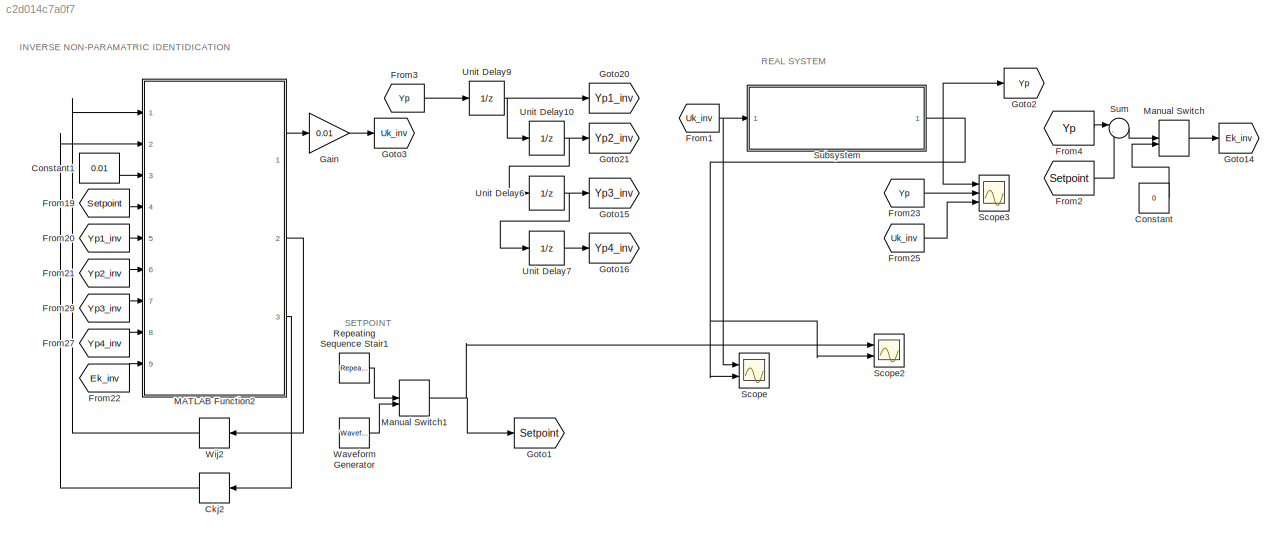
MODEL slx_c2d014c7a0f7
KIND model
CONFIG AbsTol = auto
CONFIG EnableMultiTasking = off
CONFIG FixedStep = auto
CONFIG MaxStep = auto
CONFIG MinStep = auto
CONFIG RelTol = 1e-3
CONFIG SampleTimeConstraint = Unconstrained
CONFIG Solver = VariableStepAuto
CONFIG SolverName = VariableStepAuto
CONFIG StartTime = 0.0
CONFIG StopTime = 700
BLOCK [Memory] Ckj2
  InitialCondition = C
  NameLocation = top
BLOCK [Constant] Constant
  Value = 0
BLOCK [Constant] Constant1
  Value = 0.01
BLOCK [From] From1
  GotoTag = Uk_inv
BLOCK [From] From19
  GotoTag = Setpoint
BLOCK [From] From2
  GotoTag = Setpoint
BLOCK [From] From20
  GotoTag = Yp1_inv
BLOCK [From] From21
  GotoTag = Yp2_inv
BLOCK [From] From22
  GotoTag = Ek_inv
BLOCK [From] From23
  GotoTag = Yp
BLOCK [From] From25
  GotoTag = Uk_inv
BLOCK [From] From27
  GotoTag = Yp4_inv
BLOCK [From] From29
  GotoTag = Yp3_inv
BLOCK [From] From3
  GotoTag = Yp
BLOCK [From] From4
  GotoTag = Yp
BLOCK [Gain] Gain
  Gain = 0.01
BLOCK [Goto] Goto1
  GotoTag = Setpoint
BLOCK [Goto] Goto14
  GotoTag = Ek_inv
BLOCK [Goto] Goto15
  GotoTag = Yp3_inv
BLOCK [Goto] Goto16
  GotoTag = Yp4_inv
BLOCK [Goto] Goto2
  GotoTag = Yp
BLOCK [Goto] Goto20
  GotoTag = Yp1_inv
BLOCK [Goto] Goto21
  GotoTag = Yp2_inv
BLOCK [Goto] Goto3
  GotoTag = Uk_inv
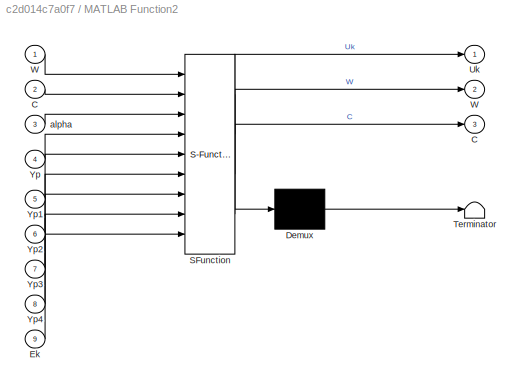
BLOCK [SubSystem] MATLAB Function2
  ErrorFcn = Stateflow.Translate.translate
  PermitHierarchicalResolution = ExplicitOnly
  Ports = [9, 3]
  RequestExecContextInheritance = off
  SFBlockType = MATLAB Function
  TreatAsAtomicUnit = on
BLOCK [Demux] MATLAB Function2/ Demux 
  Outputs = 1
  Ports = [1, 1]
BLOCK [S-Function] MATLAB Function2/ SFunction 
  EnableBusSupport = on
  FunctionName = sf_sfun
  PortCounts = [9 4]
  Ports = [9, 4]
  SFcnIsStateOwnerBlock = off
  SFunctionDeploymentMode = off
  Tag = Stateflow S-Function 3
BLOCK [Terminator] MATLAB Function2/ Terminator 
BLOCK [Outport] MATLAB Function2/C
  Port = 3
BLOCK [Inport] MATLAB Function2/C 
  Port = 2
BLOCK [Inport] MATLAB Function2/Ek
  Port = 9
BLOCK [Outport] MATLAB Function2/Uk
BLOCK [Outport] MATLAB Function2/W
  Port = 2
BLOCK [Inport] MATLAB Function2/W 
BLOCK [Inport] MATLAB Function2/Yp
  Port = 4
BLOCK [Inport] MATLAB Function2/Yp1
  Port = 5
BLOCK [Inport] MATLAB Function2/Yp2
  Port = 6
BLOCK [Inport] MATLAB Function2/Yp3
  Port = 7
BLOCK [Inport] MATLAB Function2/Yp4
  Port = 8
BLOCK [Inport] MATLAB Function2/alpha
  Port = 3
BLOCK [ManualSwitch] Manual Switch
BLOCK [ManualSwitch] Manual Switch1
BLOCK [Reference] Repeating Sequence Stair1  REF=simulink/Sources/Repeating
Sequence
Stair
  Ports = [0, 1]
  SourceBlock = simulink/Sources/Repeating\nSequence\nStair
  SourceProductBaseCode = SL
  SourceType = Repeating Sequence Stair
BLOCK [Scope] Scope
  Floating = off
  NumInputPorts = 2
  Ports = [2]
  ScopeSpecificationString = Simulink.scopes.TimeScopeBlockCfg('CurrentConfiguration', extmgr.ConfigurationSet(extmgr.Configuration('Core','General UI',true),extmgr.Configuration('Core','Source UI',true),extmgr.Configuration('Sources','WiredSimulink',true),extmgr.Configuration('Visuals','Time Domain',true,'SerializedDisplays',{struct('MinYLimReal','-6.18022','MaxYLimReal','7.12297','YLabelReal','','MinYLimMag','0.00000','MaxY...<+1409ch>
BLOCK [Scope] Scope2
  Floating = off
  NumInputPorts = 2
  Ports = [2]
  ScopeSpecificationString = Simulink.scopes.TimeScopeBlockCfg('CurrentConfiguration', extmgr.ConfigurationSet(extmgr.Configuration('Core','General UI',true),extmgr.Configuration('Core','Source UI',true),extmgr.Configuration('Sources','WiredSimulink',true,'DataLoggingVariableName','ScopeData3'),extmgr.Configuration('Visuals','Time Domain',true,'SerializedDisplays',{struct('MinYLimReal','-2.31274','MaxYLimReal','3.63371','YLab...<+1462ch>
BLOCK [Scope] Scope3
  Floating = off
  NumInputPorts = 3
  Ports = [3]
  ScopeSpecificationString = Simulink.scopes.TimeScopeBlockCfg('CurrentConfiguration', extmgr.ConfigurationSet(extmgr.Configuration('Core','General UI',true),extmgr.Configuration('Core','Source UI',true),extmgr.Configuration('Sources','WiredSimulink',true,'DataLoggingVariableName','ScopeData2'),extmgr.Configuration('Visuals','Time Domain',true,'SerializedDisplays',{struct('MinYLimReal','-0.01421','MaxYLimReal','0.02456','YLab...<+1466ch>
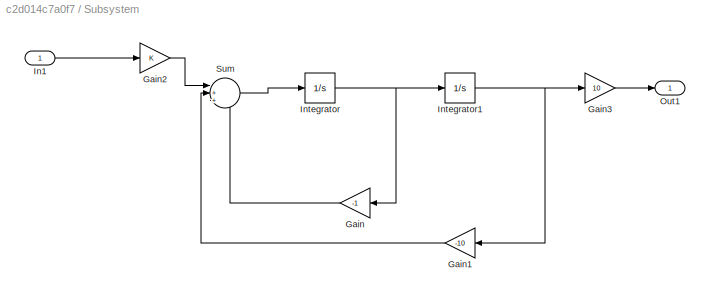
BLOCK [SubSystem] Subsystem
  Ports = [1, 1]
  RequestExecContextInheritance = off
BLOCK [Gain] Subsystem/Gain
  Gain = -1
  NameLocation = top
BLOCK [Gain] Subsystem/Gain1
  Gain = -10
  NameLocation = top
BLOCK [Gain] Subsystem/Gain2
BLOCK [Gain] Subsystem/Gain3
  Gain = 10
BLOCK [Inport] Subsystem/In1
BLOCK [Integrator] Subsystem/Integrator
  Ports = [1, 1]
BLOCK [Integrator] Subsystem/Integrator1
  Ports = [1, 1]
BLOCK [Outport] Subsystem/Out1
  VectorParamsAs1DForOutWhenUnconnected = off
BLOCK [Sum] Subsystem/Sum
  Inputs = |+++
  Ports = [3, 1]
BLOCK [Sum] Sum
  Inputs = |-+
  Ports = [2, 1]
BLOCK [UnitDelay] Unit Delay10
  HasFrameUpgradeWarning = on
  SampleTime = -1
BLOCK [UnitDelay] Unit Delay6
  HasFrameUpgradeWarning = on
  SampleTime = -1
BLOCK [UnitDelay] Unit Delay7
  HasFrameUpgradeWarning = on
  SampleTime = -1
BLOCK [UnitDelay] Unit Delay9
  HasFrameUpgradeWarning = on
  SampleTime = -1
BLOCK [Reference] Waveform Generator  REF=simulink/Sources/Waveform
Generator
  Ports = [0, 1]
  SourceBlock = simulink/Sources/Waveform\nGenerator
  SourceProductBaseCode = SL
  SourceType = WaveformGenerator
BLOCK [Memory] Wij2
  InitialCondition = W
  NameLocation = top
ANNOTATION (root): INVERSE NON-PARAMATRIC IDENTIDICATION
ANNOTATION (root): REAL SYSTEM
ANNOTATION (root): SETPOINT
LINE Ckj2:1 -> MATLAB Function2:2
LINE Constant1:1 -> MATLAB Function2:3
LINE Constant:1 -> Manual Switch:2
LINE From19:1 -> MATLAB Function2:4
NET From1:1 -> Scope:1, Subsystem:1
LINE From20:1 -> MATLAB Function2:5
LINE From21:1 -> MATLAB Function2:6
LINE From22:1 -> MATLAB Function2:9
LINE From23:1 -> Scope3:2
LINE From25:1 -> Scope3:3
LINE From27:1 -> MATLAB Function2:8
LINE From29:1 -> MATLAB Function2:7
LINE From2:1 -> Sum:2
LINE From3:1 -> Unit Delay9:1
LINE From4:1 -> Sum:1
LINE Gain:1 -> Goto3:1
LINE MATLAB Function2:1 -> Gain:1
LINE MATLAB Function2:2 -> Wij2:1
LINE MATLAB Function2:3 -> Ckj2:1
NET Manual Switch1:1 -> Goto1:1, Scope2:1
LINE Manual Switch:1 -> Goto14:1
LINE Repeating Sequence Stair1:1 -> Manual Switch1:1
LINE Subsystem/Gain1:1 -> Subsystem/Sum:2
LINE Subsystem/Gain2:1 -> Subsystem/Sum:1
LINE Subsystem/Gain3:1 -> Subsystem/Out1:1
LINE Subsystem/Gain:1 -> Subsystem/Sum:3
LINE Subsystem/In1:1 -> Subsystem/Gain2:1
NET Subsystem/Integrator1:1 -> Subsystem/Gain1:1, Subsystem/Gain3:1
NET Subsystem/Integrator:1 -> Subsystem/Gain:1, Subsystem/Integrator1:1
LINE Subsystem/Sum:1 -> Subsystem/Integrator:1
NET Subsystem:1 -> Goto2:1, Scope2:2, Scope3:1, Scope:2
LINE Sum:1 -> Manual Switch:1
NET Unit Delay10:1 -> Goto21:1, Unit Delay6:1
NET Unit Delay6:1 -> Goto15:1, Unit Delay7:1
LINE Unit Delay7:1 -> Goto16:1
NET Unit Delay9:1 -> Goto20:1, Unit Delay10:1
LINE Waveform Generator:1 -> Manual Switch1:2
LINE Wij2:1 -> MATLAB Function2:1
note: NET lines group one-source signal fan-out (src -> all destinations, sorted); 1:1 wires keep LINE
CHART MATLAB Function2 states=1 transitions=1
  STATE_LABEL 'eML_blk_kernel()'
  STATE_LABEL "SCRIPT:\nfunction [Uk, W, C] = fcn(W, C, alpha, Yp, Yp1, Yp2, Yp3, Yp4, Ek)\n    % Define input vector\n    X = [Yp Yp1 Yp2 Yp3 Yp4];\n    \n    % Calculate Aj in the hidden layer\n    Aj = W*X';\n    \n    % Activation function of the hidden layer\n    H = tanh(Aj);\n    \n    % Calculate Ak in the output layer\n    Ak = C'*H;\n    \n    % Activation function of the output layer\n    Uk = Ak;\n    \n    % Update ...<+115ch>"
CHART  states=0 transitions=0
